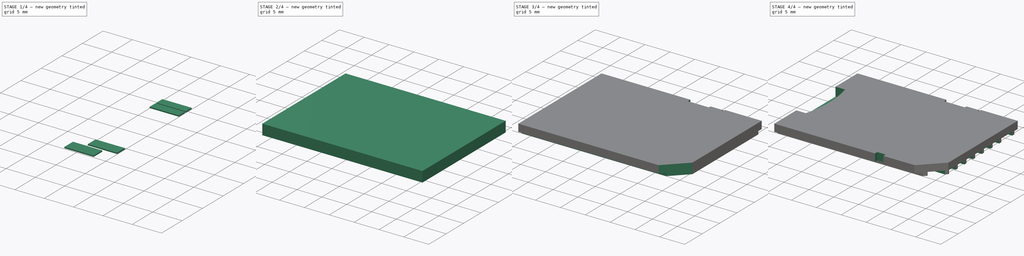
[diagram: build sequence overview — one tinted view per stage of 4, left to right]
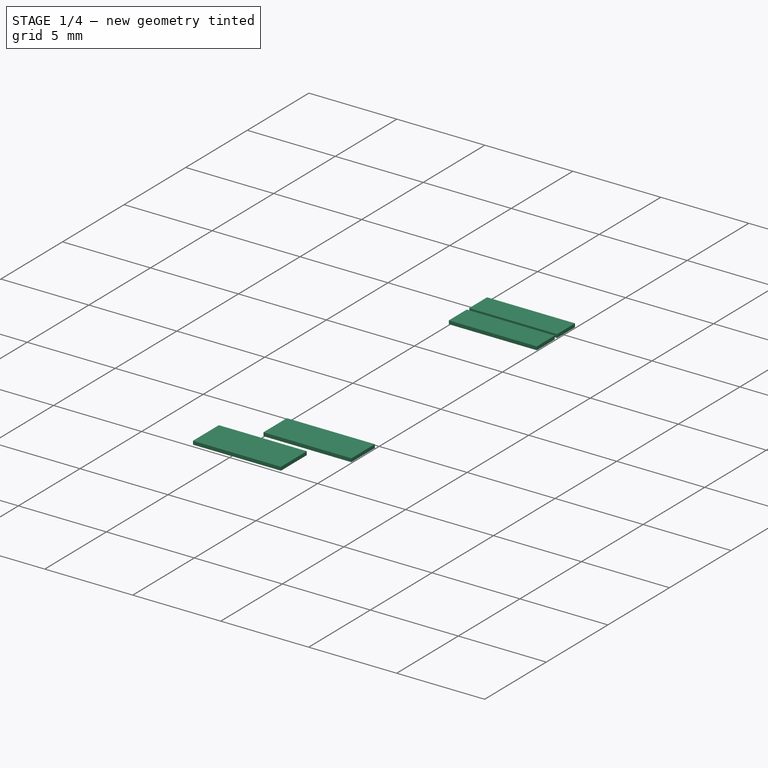
[diagram: stage 1 of 4 — iso view after this stage's code; geometry added in this stage tinted green]
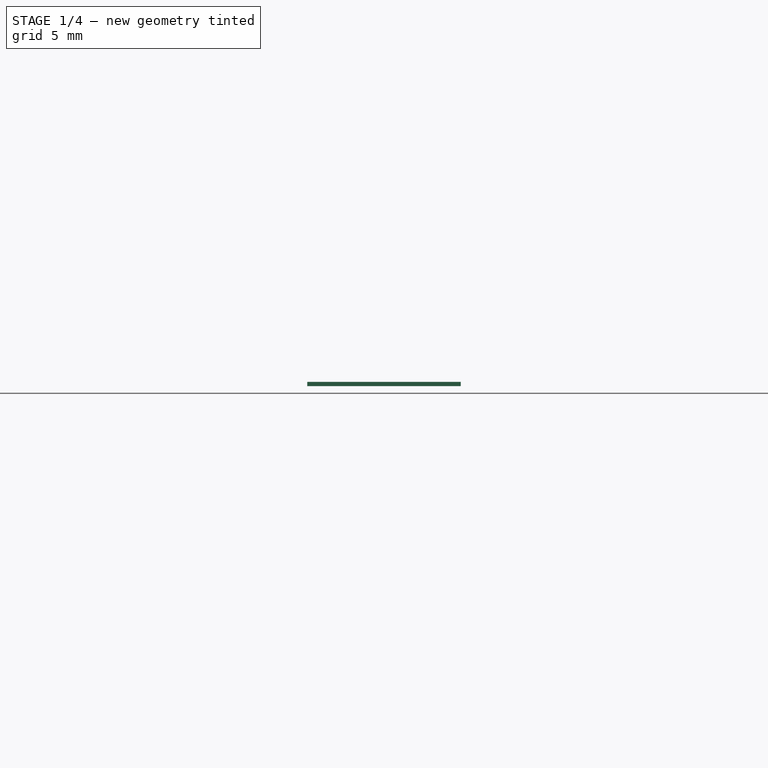
[diagram: stage 1 of 4 — front view after this stage's code; geometry added in this stage tinted green]
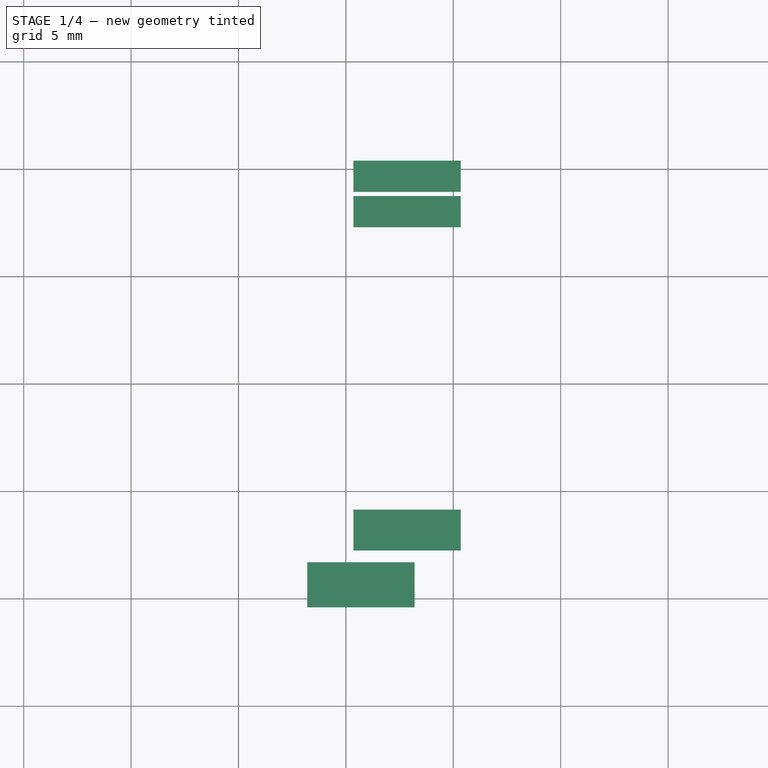
[diagram: stage 1 of 4 — top view after this stage's code; geometry added in this stage tinted green]
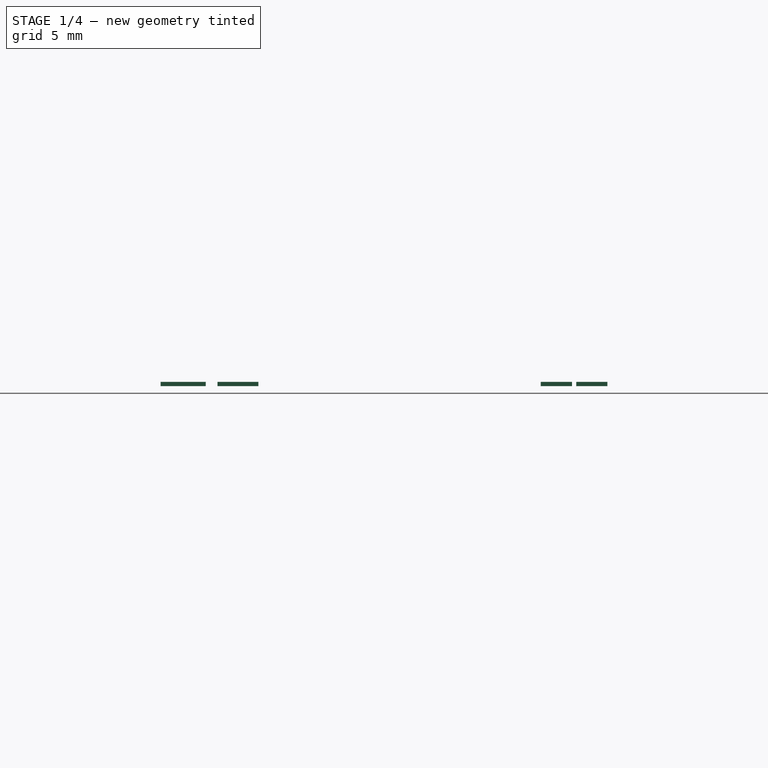
[diagram: stage 1 of 4 — right view after this stage's code; geometry added in this stage tinted green]
FCSTD DOCUMENT  (FreeCAD 0.14R3310 (Git))
Label: 98. ADAPTADOR SD
License: CC-BY 3.0
LicenseURL: http://creativecommons.org/licenses/by/3.0/
objects: Sketcher::SketchObject×7, PartDesign::Pocket×6, Part::Box×5, PartDesign::Pad×1, PartDesign::Chamfer×1, Part::FeaturePython×1
note: 28 computed .brp shape members not serialized (recipe doc carries the construction recipe); baked Part::Feature solids carry a one-line shape summary decoded from their .brp

FEATURE [Part::Box] Box001  label="Cube001"
  Height = 0.2
  Length = 5
  Placement = pos=(10.35,-7.75,0.68) rot=(0,0,1;0rad)
  Width = 1.9
FEATURE [Part::Box] Box002  label="Cube002"
  Height = 0.2
  Length = 5
  Placement = pos=(8.2,-10.4,0.68) rot=(0,0,1;0rad)
  Width = 2.1
FEATURE [Part::Box] Box003  label="Cube003"
  Height = 0.2
  Length = 5
  Placement = pos=(10.35,7.3,0.68) rot=(0,0,1;0rad)
  Width = 1.45
FEATURE [Part::Box] Box004  label="Cube004"
  Height = 0.2
  Length = 5
  Placement = pos=(10.35,8.95,0.68) rot=(0,0,1;0rad)
  Width = 1.45
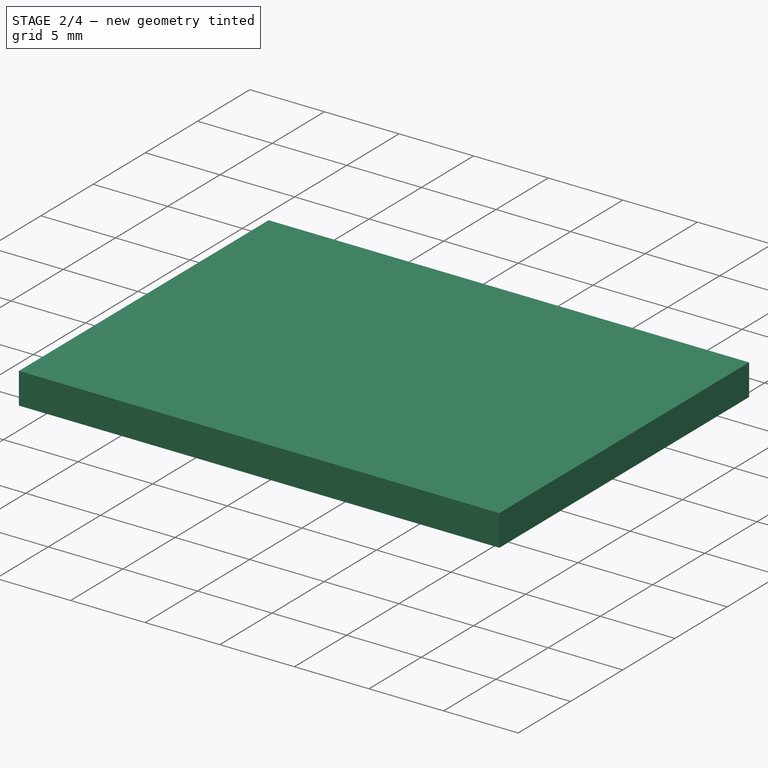
[diagram: stage 2 of 4 — iso view after this stage's code; geometry added in this stage tinted green]
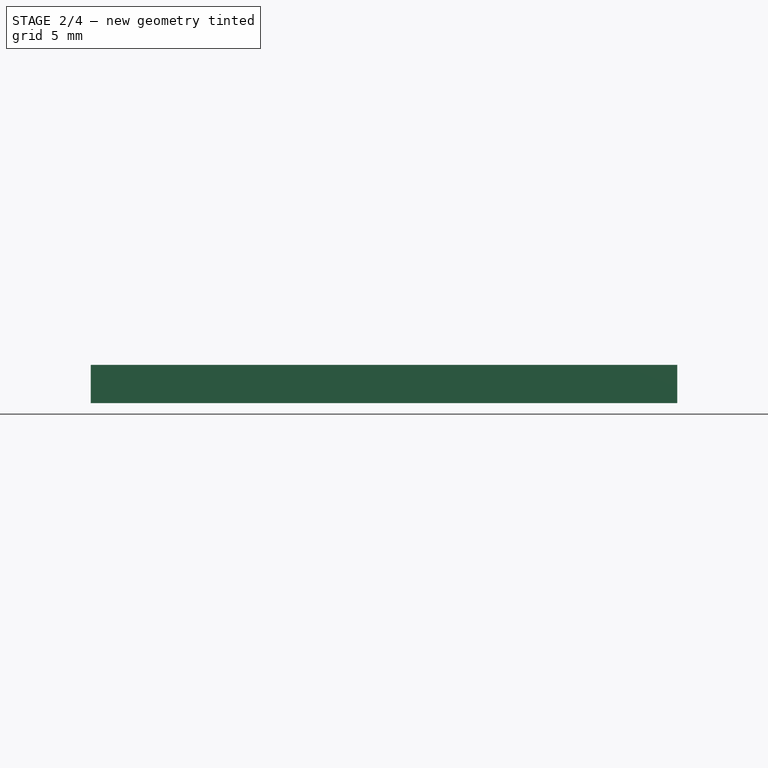
[diagram: stage 2 of 4 — front view after this stage's code; geometry added in this stage tinted green]
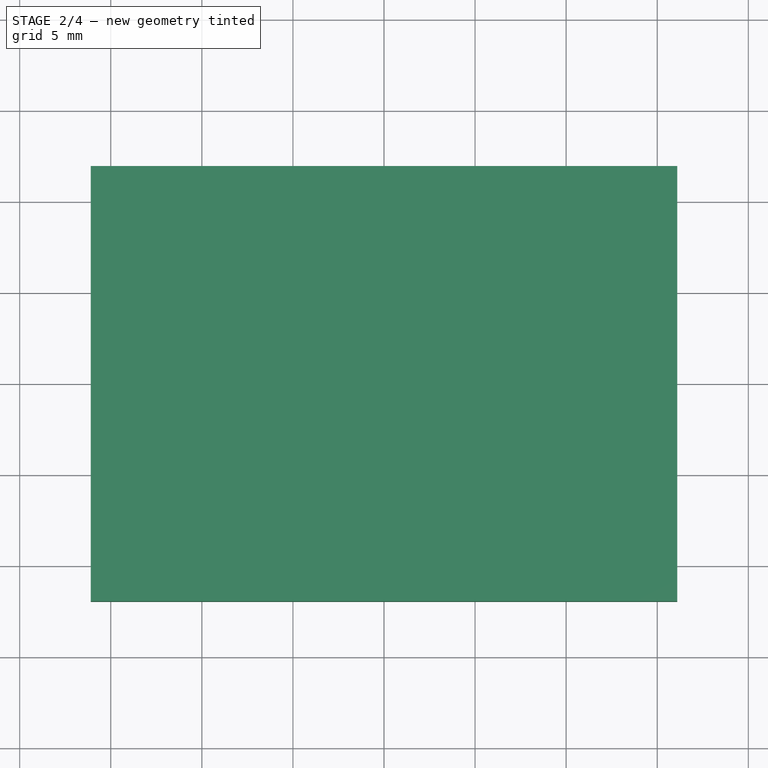
[diagram: stage 2 of 4 — top view after this stage's code; geometry added in this stage tinted green]
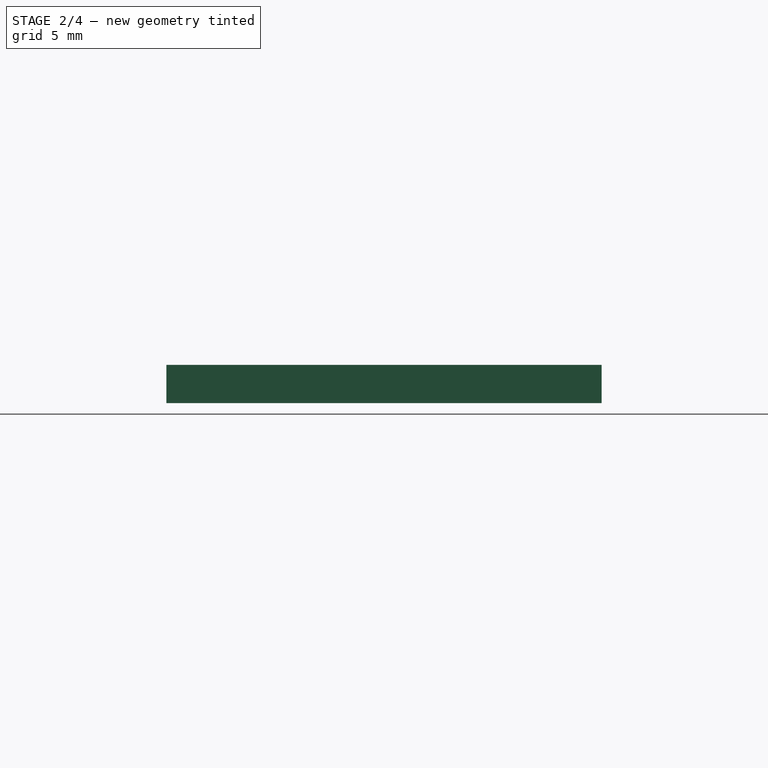
[diagram: stage 2 of 4 — right view after this stage's code; geometry added in this stage tinted green]
FEATURE [Sketcher::SketchObject] Sketch
  sketch-geometry (4):
    g0: LineSegment StartX=-16.1 StartY=11.95 StartZ=0 EndX=16.1 EndY=11.95 EndZ=0
    g1: LineSegment StartX=16.1 StartY=11.95 StartZ=0 EndX=16.1 EndY=-11.95 EndZ=0
    g2: LineSegment StartX=16.1 StartY=-11.95 StartZ=0 EndX=-16.1 EndY=-11.95 EndZ=0
    g3: LineSegment StartX=-16.1 StartY=-11.95 StartZ=0 EndX=-16.1 EndY=11.95 EndZ=0
  constraints (11):
    c: Coincident(g0,g1)
    c: Coincident(g1,g2)
    c: Coincident(g2,g3)
    c: Coincident(g3,g0)
    c: Horizontal(g0)
    c: Horizontal(g2)
    c: Vertical(g1)
    c: Vertical(g3)
    c: Symmetric(g1,g0,g-1)
    c: Distance(g0) = 32.2
    c: Distance(g1) = 23.9
FEATURE [PartDesign::Pad] Pad
  Length = 2.1
  Length2 = 100
  Sketch = -> Sketch
  Type = 0
FEATURE [Part::Box] Box  label="Cube"
  Height = 1.25
  Length = 2.6
  Placement = pos=(5.9,11,0.8) rot=(0,0,1;0rad)
  Width = 0.8
FEATURE [Part::FeaturePython] Array  # Draft array (typed FeaturePython)
  Angle = 360
  ArrayType = 0
  Axis = (0,0,1)
  Base = -> Box001
  Center = (0,0,0)
  IntervalX = (1,0,0)
  IntervalY = (0,2.5,0)
  IntervalZ = (0,0,1)
  NumberPolar = 1
  NumberX = 1
  NumberY = 6
  NumberZ = 1
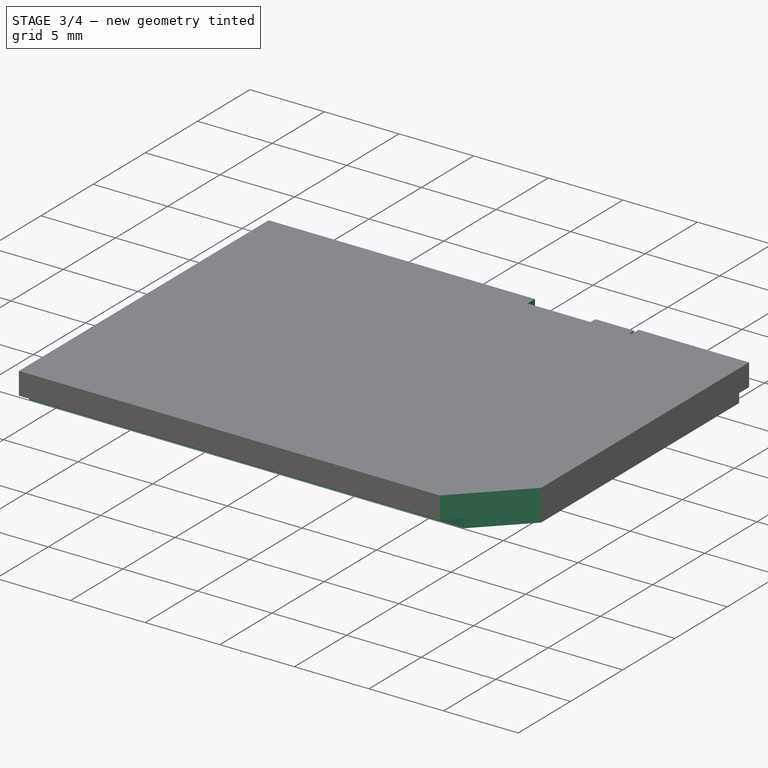
[diagram: stage 3 of 4 — iso view after this stage's code; geometry added in this stage tinted green]
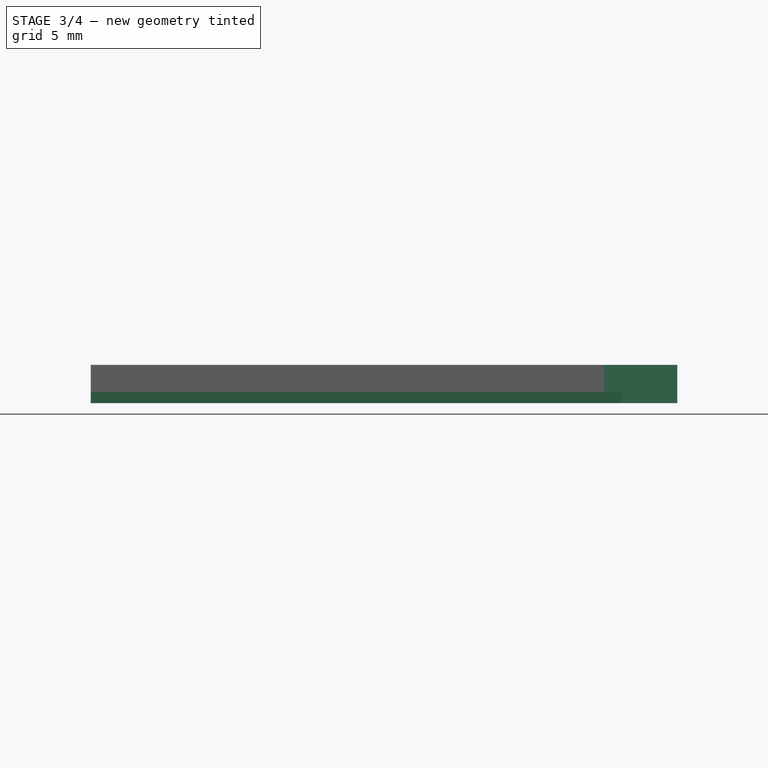
[diagram: stage 3 of 4 — front view after this stage's code; geometry added in this stage tinted green]
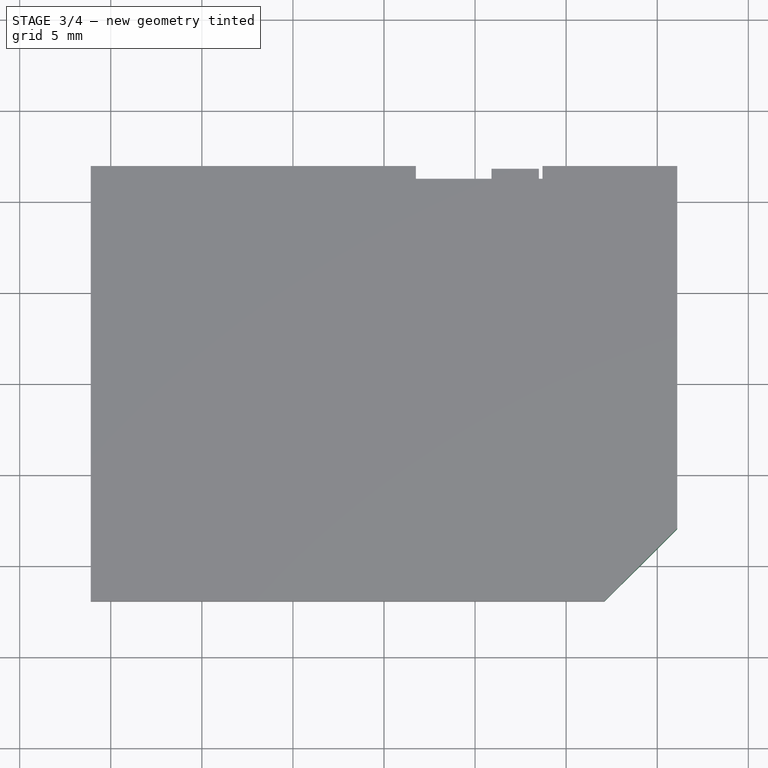
[diagram: stage 3 of 4 — top view after this stage's code; geometry added in this stage tinted green]
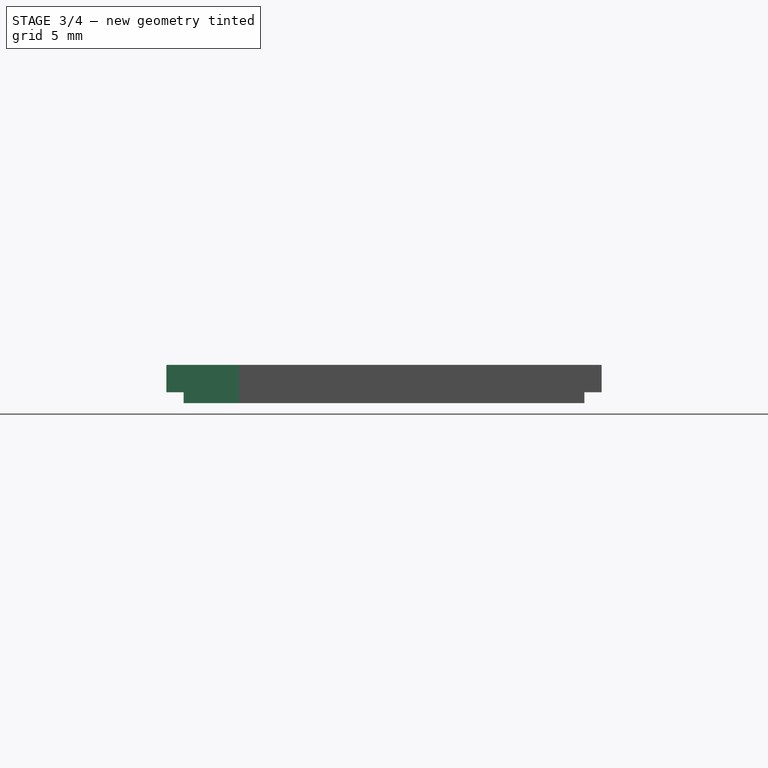
[diagram: stage 3 of 4 — right view after this stage's code; geometry added in this stage tinted green]
FEATURE [PartDesign::Chamfer] Chamfer
  Base = -> Pad [Edge5]
  Size = 4
FEATURE [Sketcher::SketchObject] Sketch001
  ExternalGeometry = -> [Chamfer]
  Placement = pos=(0,0,2.1) rot=(0,0,1;0rad)
  Support = -> Chamfer [Face5]
  sketch-geometry (4):
    g0: LineSegment StartX=1.75 StartY=11.95 StartZ=0 EndX=8.7 EndY=11.95 EndZ=0
    g1: LineSegment StartX=8.7 StartY=11.95 StartZ=0 EndX=8.7 EndY=11.25 EndZ=0
    g2: LineSegment StartX=8.7 StartY=11.25 StartZ=0 EndX=1.75 EndY=11.25 EndZ=0
    g3: LineSegment StartX=1.75 StartY=11.25 StartZ=0 EndX=1.75 EndY=11.95 EndZ=0
  constraints (12):
    c: Coincident(g0,g1)
    c: Coincident(g1,g2)
    c: Coincident(g2,g3)
    c: Coincident(g3,g0)
    c: Horizontal(g0)
    c: Horizontal(g2)
    c: Vertical(g1)
    c: Vertical(g3)
    c: Distance(g1,g-3) = 7.4
    c: Distance(g2) = 6.95
    c: PointOnObject(g0,g-4)
    c: Distance(g3) = 0.7
FEATURE [PartDesign::Pocket] Pocket
  Length = 5
  Sketch = -> Sketch001
  Type = 0
FEATURE [Sketcher::SketchObject] Sketch002
  ExternalGeometry = -> [Pocket]
  Placement = pos=(0,0,0) rot=(1,0,0;3.14159rad)
  Support = -> Pocket [Face2]
  sketch-geometry (8):
    g0: LineSegment StartX=-16.1 StartY=11.95 StartZ=0 EndX=16.1 EndY=11.95 EndZ=0
    g1: LineSegment StartX=16.1 StartY=11.95 StartZ=0 EndX=16.1 EndY=11 EndZ=0
    g2: LineSegment StartX=16.1 StartY=11 StartZ=0 EndX=-16.1 EndY=11 EndZ=0
    g3: LineSegment StartX=-16.1 StartY=11 StartZ=0 EndX=-16.1 EndY=11.95 EndZ=0
    g4: LineSegment StartX=-16.1 StartY=-11 StartZ=0 EndX=16.1 EndY=-11 EndZ=0
    g5: LineSegment StartX=16.1 StartY=-11 StartZ=0 EndX=16.1 EndY=-11.95 EndZ=0
    g6: LineSegment StartX=16.1 StartY=-11.95 StartZ=0 EndX=-16.1 EndY=-11.95 EndZ=0
    g7: LineSegment StartX=-16.1 StartY=-11.95 StartZ=0 EndX=-16.1 EndY=-11 EndZ=0
  constraints (24):
    c: Coincident(g0,g1)
    c: Coincident(g1,g2)
    c: Coincident(g2,g3)
    c: Coincident(g3,g0)
    c: Horizontal(g0)
    c: Horizontal(g2)
    c: Vertical(g1)
    c: Vertical(g3)
    c: Coincident(g4,g5)
    c: Coincident(g5,g6)
    c: Coincident(g6,g7)
    c: Coincident(g7,g4)
    c: Horizontal(g4)
    c: Horizontal(g6)
    c: Vertical(g5)
    c: Vertical(g7)
    c: Distance(g-3,g4) = 0.95
    c: PointOnObject(g4,g-5)
    c: PointOnObject(g-5,g6)
    c: PointOnObject(g4,g-6)
    c: Distance(g-5,g2) = 0.95
    c: PointOnObject(g-5,g3)
    c: PointOnObject(g0,g-4)
    c: PointOnObject(g-6,g1)
FEATURE [PartDesign::Pocket] Pocket001
  Length = 0.6
  Sketch = -> Sketch002
  Type = 0
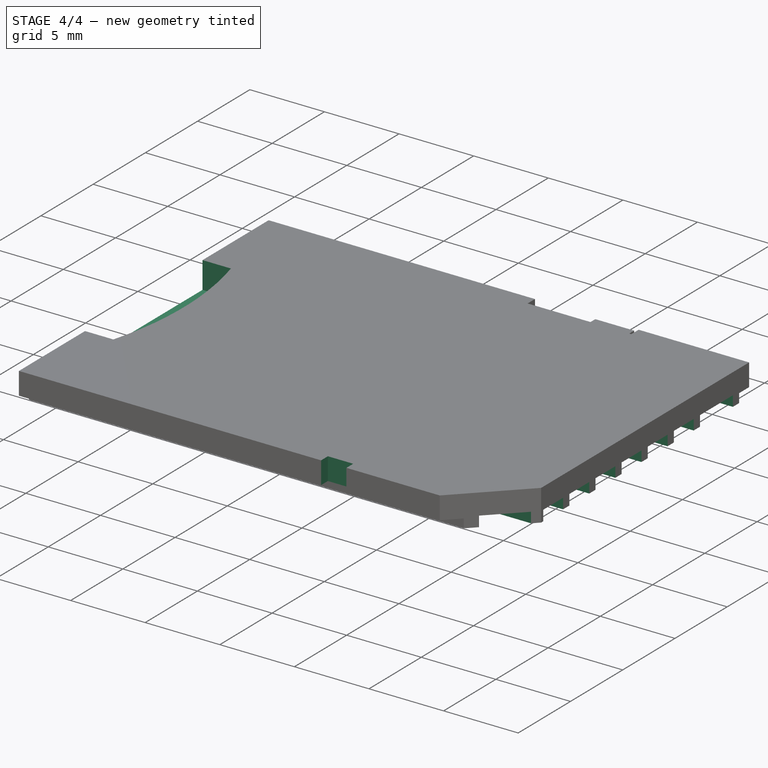
[diagram: stage 4 of 4 — iso view after this stage's code; geometry added in this stage tinted green]
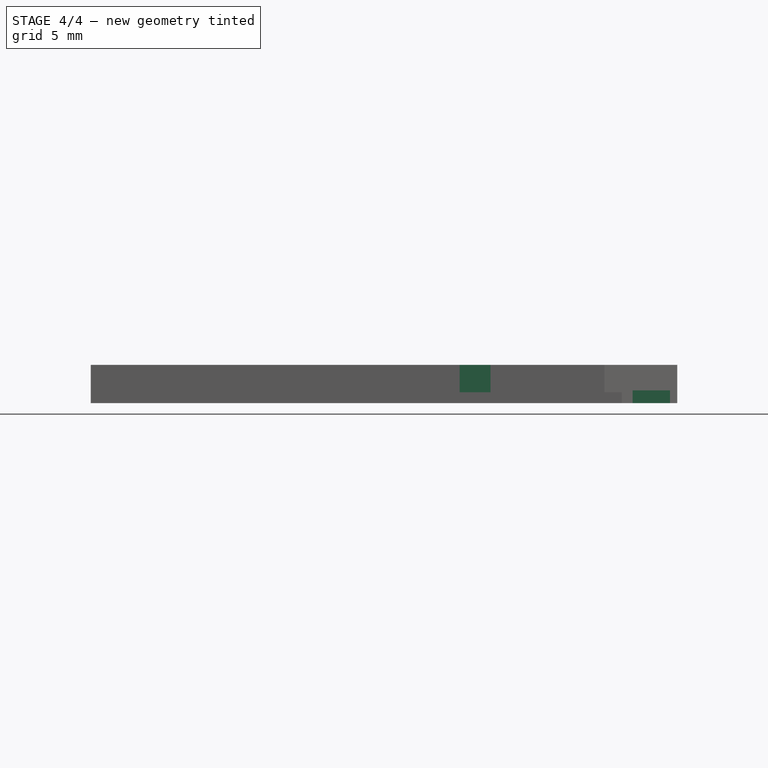
[diagram: stage 4 of 4 — front view after this stage's code; geometry added in this stage tinted green]
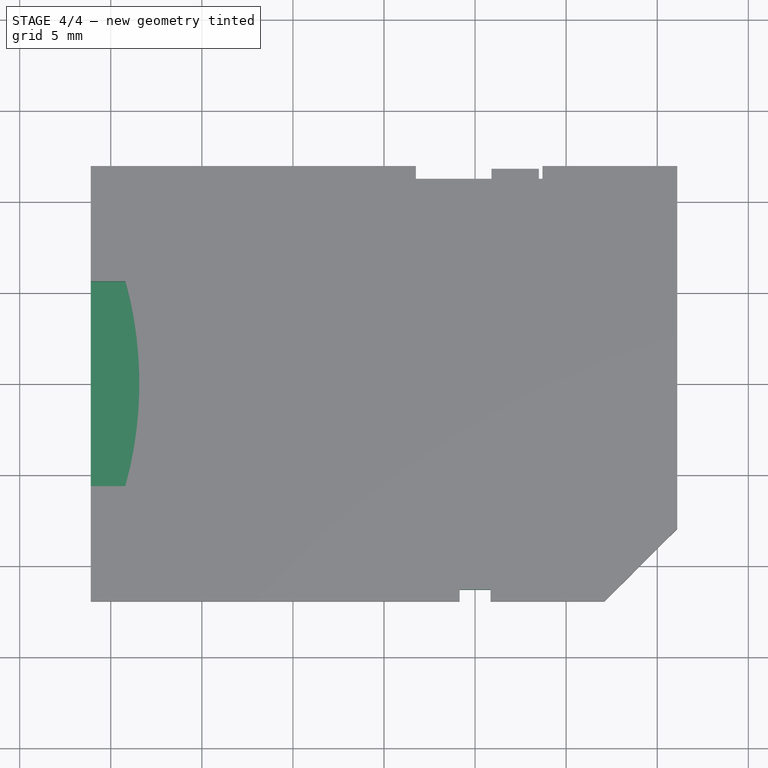
[diagram: stage 4 of 4 — top view after this stage's code; geometry added in this stage tinted green]
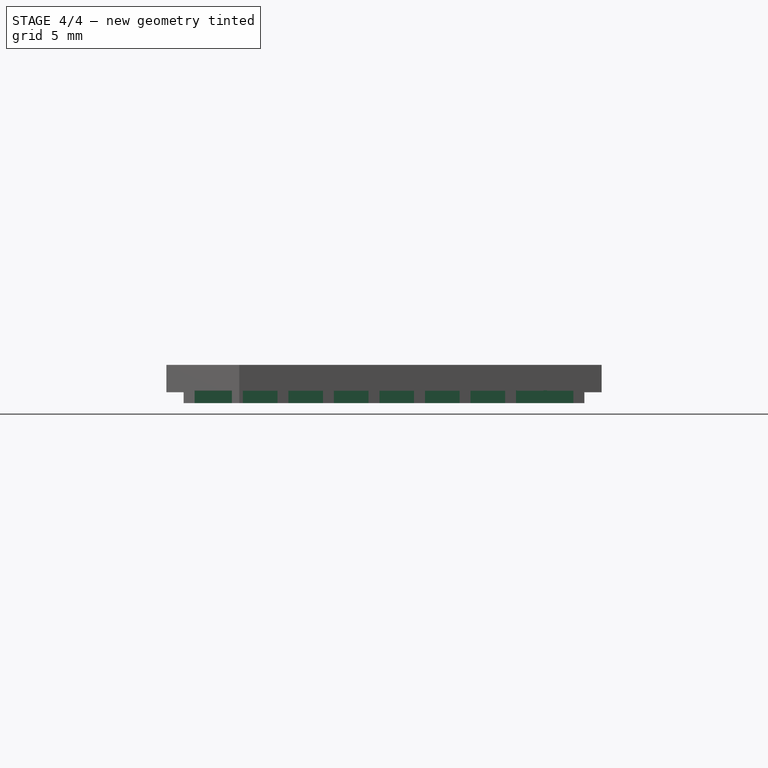
[diagram: stage 4 of 4 — right view after this stage's code; geometry added in this stage tinted green]
FEATURE [Sketcher::SketchObject] Sketch003
  ExternalGeometry = -> [Pocket001]
  Placement = pos=(0,0,2.1) rot=(0,0,1;0rad)
  Support = -> Pocket001 [Face4]
  sketch-geometry (4):
    g0: LineSegment StartX=4.15 StartY=-11.3 StartZ=0 EndX=5.85 EndY=-11.3 EndZ=0
    g1: LineSegment StartX=5.85 StartY=-11.3 StartZ=0 EndX=5.85 EndY=-11.95 EndZ=0
    g2: LineSegment StartX=5.85 StartY=-11.95 StartZ=0 EndX=4.15 EndY=-11.95 EndZ=0
    g3: LineSegment StartX=4.15 StartY=-11.95 StartZ=0 EndX=4.15 EndY=-11.3 EndZ=0
  constraints (12):
    c: Coincident(g0,g1)
    c: Coincident(g1,g2)
    c: Coincident(g2,g3)
    c: Coincident(g3,g0)
    c: Horizontal(g0)
    c: Horizontal(g2)
    c: Vertical(g1)
    c: Vertical(g3)
    c: PointOnObject(g1,g-3)
    c: Distance(g3) = 0.65
    c: Distance(g0) = 1.7
    c: Distance(g-3,g2) = 20.25
FEATURE [PartDesign::Pocket] Pocket002
  Length = 5
  Sketch = -> Sketch003
  Type = 0
FEATURE [Sketcher::SketchObject] Sketch004
  ExternalGeometry = -> [Pocket002]
  Placement = pos=(0,0,0) rot=(1,0,0;3.14159rad)
  Support = -> Pocket002 [Face2]
  sketch-geometry (33):
    g0: LineSegment StartX=10.35 StartY=-4.75 StartZ=0 EndX=16.1 EndY=-4.75 EndZ=0
    g1: LineSegment StartX=16.1 StartY=-4.75 StartZ=0 EndX=16.1 EndY=-6.65 EndZ=0
    g2: LineSegment StartX=16.1 StartY=-6.65 StartZ=0 EndX=10.35 EndY=-6.65 EndZ=0
    g3: LineSegment StartX=10.35 StartY=-6.65 StartZ=0 EndX=10.35 EndY=-4.75 EndZ=0
    g4: LineSegment StartX=10.35 StartY=-2.25 StartZ=0 EndX=16.1 EndY=-2.25 EndZ=0
    g5: LineSegment StartX=16.1 StartY=-2.25 StartZ=0 EndX=16.1 EndY=-4.15 EndZ=0
    g6: LineSegment StartX=16.1 StartY=-4.15 StartZ=0 EndX=10.35 EndY=-4.15 EndZ=0
    g7: LineSegment StartX=10.35 StartY=-4.15 StartZ=0 EndX=10.35 EndY=-2.25 EndZ=0
    g8: LineSegment StartX=10.35 StartY=0.25 StartZ=0 EndX=16.1 EndY=0.25 EndZ=0
    g9: LineSegment StartX=16.1 StartY=0.25 StartZ=0 EndX=16.1 EndY=-1.65 EndZ=0
    g10: LineSegment StartX=16.1 StartY=-1.65 StartZ=0 EndX=10.35 EndY=-1.65 EndZ=0
    g11: LineSegment StartX=10.35 StartY=-1.65 StartZ=0 EndX=10.35 EndY=0.25 EndZ=0
    g12: LineSegment StartX=10.35 StartY=2.75 StartZ=0 EndX=16.1 EndY=2.75 EndZ=0
    g13: LineSegment StartX=16.1 StartY=2.75 StartZ=0 EndX=16.1 EndY=0.85 EndZ=0
    g14: LineSegment StartX=16.1 StartY=0.85 StartZ=0 EndX=10.35 EndY=0.85 EndZ=0
    g15: LineSegment StartX=10.35 StartY=0.85 StartZ=0 EndX=10.35 EndY=2.75 EndZ=0
    g16: LineSegment StartX=10.35 StartY=5.25 StartZ=0 EndX=16.1 EndY=5.25 EndZ=0
    g17: LineSegment StartX=16.1 StartY=5.25 StartZ=0 EndX=16.1 EndY=3.35 EndZ=0
    g18: LineSegment StartX=16.1 StartY=3.35 StartZ=0 EndX=10.35 EndY=3.35 EndZ=0
    g19: LineSegment StartX=10.35 StartY=3.35 StartZ=0 EndX=10.35 EndY=5.25 EndZ=0
    g20: LineSegment StartX=10.35 StartY=7.75 StartZ=0 EndX=16.1 EndY=7.75 EndZ=0
    g21: LineSegment StartX=16.1 StartY=7.75 StartZ=0 EndX=16.1 EndY=5.85 EndZ=0
    g22: LineSegment StartX=16.1 StartY=5.85 StartZ=0 EndX=10.35 EndY=5.85 EndZ=0
    g23: LineSegment StartX=10.35 StartY=5.85 StartZ=0 EndX=10.35 EndY=7.75 EndZ=0
    g24: LineSegment StartX=8.2 StartY=10.4 StartZ=0 EndX=16.1 EndY=10.4 EndZ=0
    g25: LineSegment StartX=16.1 StartY=10.4 StartZ=0 EndX=16.1 EndY=8.35 EndZ=0
    g26: LineSegment StartX=16.1 StartY=8.35 StartZ=0 EndX=8.2 EndY=8.35 EndZ=0
    g27: LineSegment StartX=8.2 StartY=8.35 StartZ=0 EndX=8.2 EndY=10.4 EndZ=0
    g28: LineSegment [constr] StartX=10.35 StartY=7.75 StartZ=0 EndX=10.35 EndY=-11 EndZ=0
    g29: LineSegment StartX=10.35 StartY=-7.25 StartZ=0 EndX=16.1 EndY=-7.25 EndZ=0
    g30: LineSegment StartX=16.1 StartY=-7.25 StartZ=0 EndX=16.1 EndY=-10.4 EndZ=0
    g31: LineSegment StartX=16.1 StartY=-10.4 StartZ=0 EndX=10.35 EndY=-10.4 EndZ=0
    g32: LineSegment StartX=10.35 StartY=-10.4 StartZ=0 EndX=10.35 EndY=-7.25 EndZ=0
  constraints (99):
    c: Coincident(g0,g1)
    c: Coincident(g1,g2)
    c: Coincident(g2,g3)
    c: Coincident(g3,g0)
    c: Horizontal(g0)
    c: Horizontal(g2)
    c: Vertical(g1)
    c: Vertical(g3)
    c: Coincident(g4,g5)
    c: Coincident(g5,g6)
    c: Coincident(g6,g7)
    c: Coincident(g7,g4)
    c: Horizontal(g4)
    c: Horizontal(g6)
    c: Vertical(g5)
    c: Vertical(g7)
    c: Coincident(g8,g9)
    c: Coincident(g9,g10)
    c: Coincident(g10,g11)
    c: Coincident(g11,g8)
    c: Horizontal(g8)
    c: Horizontal(g10)
    c: Vertical(g9)
    c: Vertical(g11)
    c: Coincident(g12,g13)
    c: Coincident(g13,g14)
    c: Coincident(g14,g15)
    c: Coincident(g15,g12)
    c: Horizontal(g12)
    c: Horizontal(g14)
    c: Vertical(g13)
    c: Vertical(g15)
    c: Coincident(g16,g17)
    c: Coincident(g17,g18)
    c: Coincident(g18,g19)
    c: Coincident(g19,g16)
    c: Horizontal(g16)
    c: Horizontal(g18)
    c: Vertical(g17)
    c: Vertical(g19)
    c: Coincident(g20,g21)
    c: Coincident(g21,g22)
    c: Coincident(g22,g23)
    c: Coincident(g23,g20)
    c: Horizontal(g20)
    c: Horizontal(g22)
    c: Vertical(g21)
    c: Vertical(g23)
    c: Coincident(g24,g25)
    c: Coincident(g25,g26)
    c: Coincident(g26,g27)
    c: Coincident(g27,g24)
    c: Horizontal(g24)
    c: Horizontal(g26)
    c: Vertical(g25)
    c: Vertical(g27)
    c: Distance(g24,g-3) = 0.6
    c: PointOnObject(g-4,g25)
    c: Distance(g24) = 7.9
    c: Distance(g25) = 2.05
    c: Distance(g20,g26) = 0.6
    c: Distance(g20) = 5.75
    c: Coincident(g28,g20)
    c: PointOnObject(g28,g-5)
    c: Vertical(g28)
    c: Equal(g21,g17)
    c: Equal(g17,g13)
    c: Equal(g13,g9)
    c: Equal(g9,g5)
    c: Equal(g5,g1)
    c: Distance(g21) = 1.9
    c: PointOnObject(g21,g-4)
    c: PointOnObject(g16,g28)
    c: PointOnObject(g16,g-4)
    c: Distance(g16,g22) = 0.6
    c: PointOnObject(g12,g28)
    c: PointOnObject(g12,g-4)
    c: Distance(g12,g18) = 0.6
    c: PointOnObject(g8,g28)
    c: PointOnObject(g8,g-4)
    c: Distance(g8,g14) = 0.6
    c: PointOnObject(g4,g28)
    c: PointOnObject(g4,g-4)
    c: Distance(g4,g10) = 0.6
    c: PointOnObject(g0,g28)
    c: Distance(g0,g6) = 0.6
    c: PointOnObject(g0,g-4)
    c: Coincident(g29,g30)
    c: Coincident(g30,g31)
    c: Coincident(g31,g32)
    c: Coincident(g32,g29)
    c: Horizontal(g29)
    c: Horizontal(g31)
    c: Vertical(g30)
    c: Vertical(g32)
    c: PointOnObject(g29,g28)
    c: PointOnObject(g30,g-4)
    c: Distance(g29,g2) = 0.6
    c: Distance(g31,g28) = 0.6
FEATURE [PartDesign::Pocket] Pocket003
  Length = 0.7
  Sketch = -> Sketch004
  Type = 0
FEATURE [Sketcher::SketchObject] Sketch005
  ExternalGeometry = -> [Pocket003]
  Placement = pos=(0,0,2.1) rot=(0,0,1;0rad)
  Support = -> Pocket003 [Face25]
  sketch-geometry (4):
    g0: ArcOfCircle CenterX=-34.4326 CenterY=5e-12 CenterZ=0 NormalX=0 NormalY=0 NormalZ=1 Radius=21 StartAngle=6.01202 EndAngle=6.55435
    g1: LineSegment StartX=-16.1 StartY=5.625 StartZ=0 EndX=-14.2 EndY=5.625 EndZ=0
    g2: LineSegment StartX=-16.1 StartY=-5.625 StartZ=0 EndX=-14.2 EndY=-5.625 EndZ=0
    g3: LineSegment StartX=-16.1 StartY=5.625 StartZ=0 EndX=-16.1 EndY=-5.625 EndZ=0
  constraints (13):
    c: PointOnObject(g1,g-3)
    c: Horizontal(g1)
    c: PointOnObject(g2,g-3)
    c: Horizontal(g2)
    c: Equal(g2,g1)
    c: Symmetric(g1,g2,g-1)
    c: Distance(g1) = 1.9
    c: Coincident(g1,g0)
    c: Coincident(g0,g2)
    c: Distance(g2,g1) = 11.25
    c: Radius(g0) = 21
    c: Coincident(g3,g1)
    c: Coincident(g3,g2)
FEATURE [PartDesign::Pocket] Pocket004
  Length = 1.8
  Sketch = -> Sketch005
  Type = 0
FEATURE [Sketcher::SketchObject] Sketch006
  ExternalGeometry = -> [Pocket004]
  Placement = pos=(-16.1,0,0) rot=(0.57735,-0.57735,-0.57735;2.0944rad)
  Support = -> Pocket004 [Face33]
  sketch-geometry (4):
    g0: LineSegment StartX=-5.625 StartY=0.3 StartZ=0 EndX=5.625 EndY=0.3 EndZ=0
    g1: LineSegment StartX=5.625 StartY=0.3 StartZ=0 EndX=5.625 EndY=1.15 EndZ=0
    g2: LineSegment StartX=5.625 StartY=1.15 StartZ=0 EndX=-5.625 EndY=1.15 EndZ=0
    g3: LineSegment StartX=-5.625 StartY=1.15 StartZ=0 EndX=-5.625 EndY=0.3 EndZ=0
  constraints (11):
    c: Coincident(g0,g1)
    c: Coincident(g1,g2)
    c: Coincident(g2,g3)
    c: Coincident(g3,g0)
    c: Horizontal(g0)
    c: Horizontal(g2)
    c: Vertical(g1)
    c: Vertical(g3)
    c: Coincident(g0,g-4)
    c: PointOnObject(g1,g-5)
    c: Distance(g1,g0) = 0.85
FEATURE [PartDesign::Pocket] Pocket005
  Length = 15
  Sketch = -> Sketch006
  Type = 0
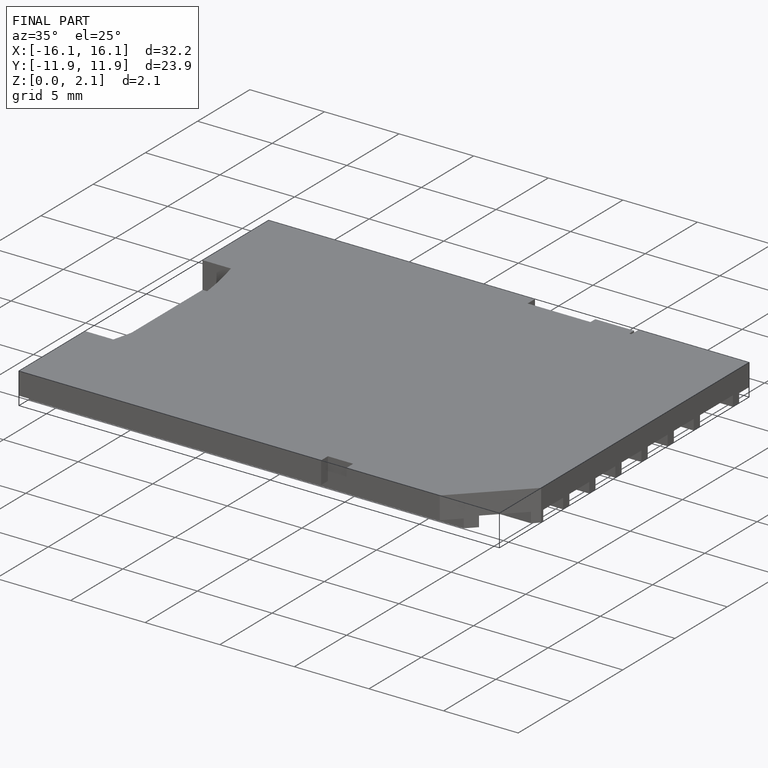
[diagram: finished part — iso view with bounding-box wireframe]
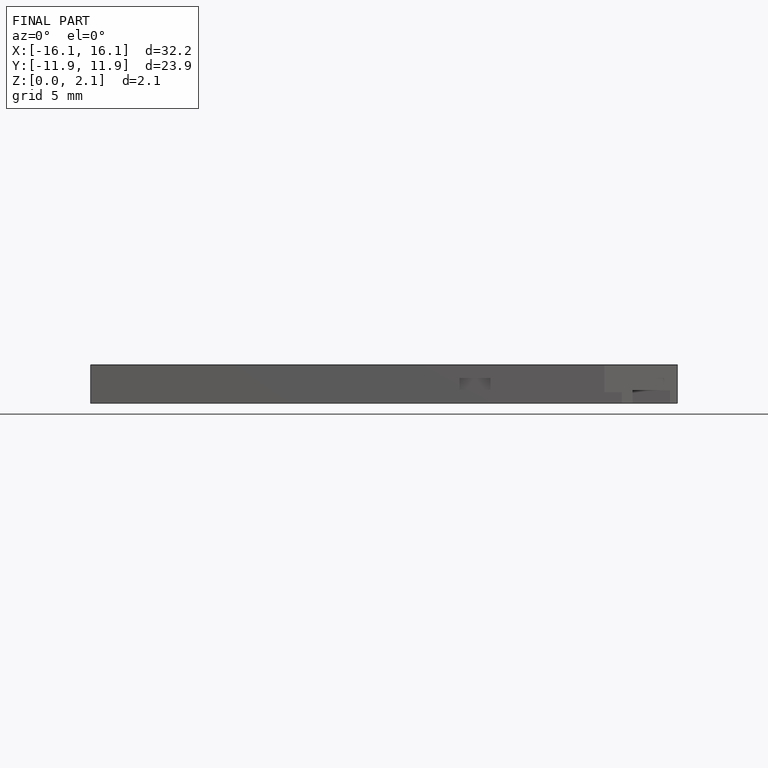
[diagram: finished part — front view with bounding-box wireframe]
